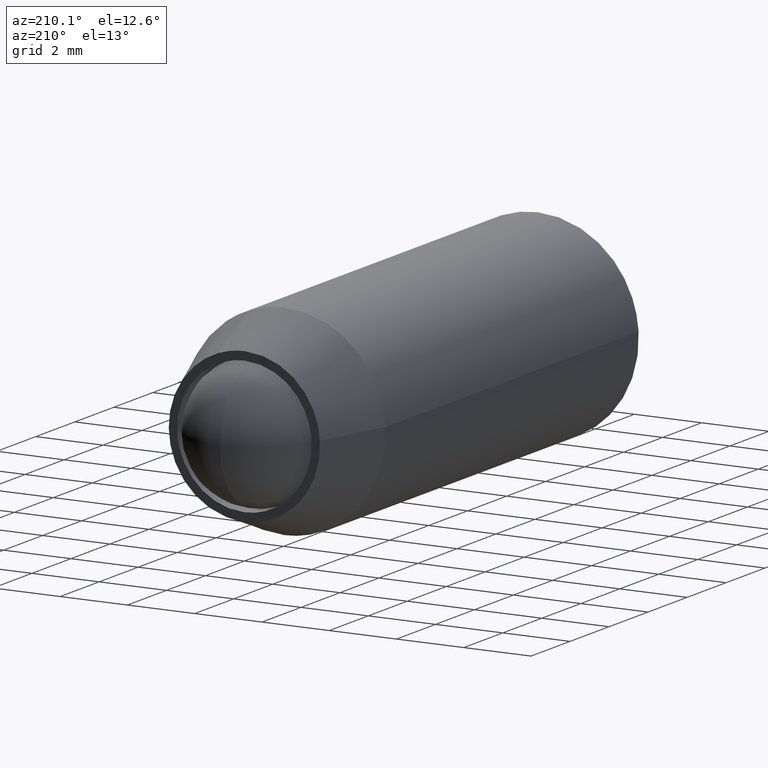
[diagram: clean part render]
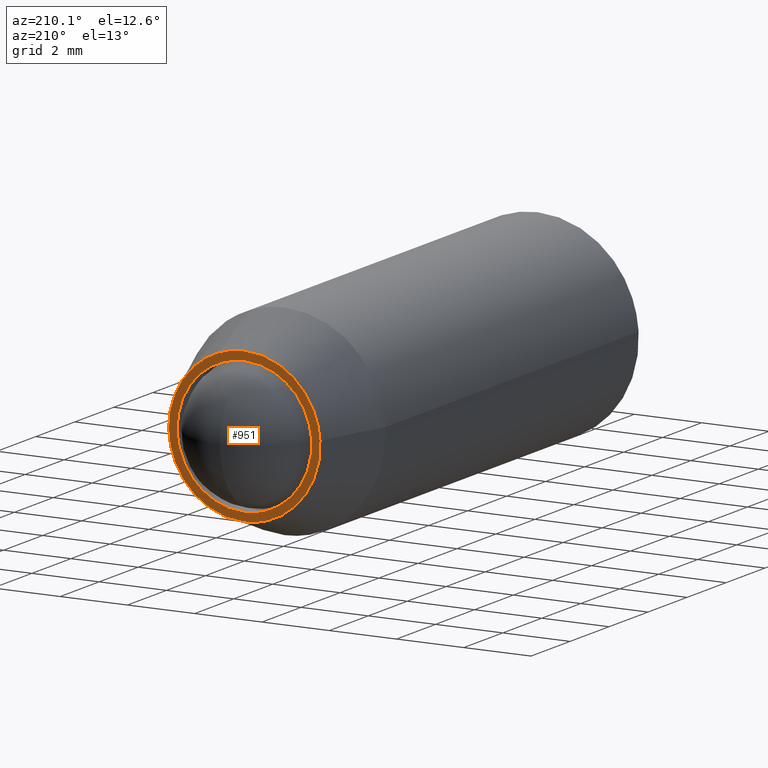
[diagram: same view with one face highlighted and labeled with its STEP entity id]
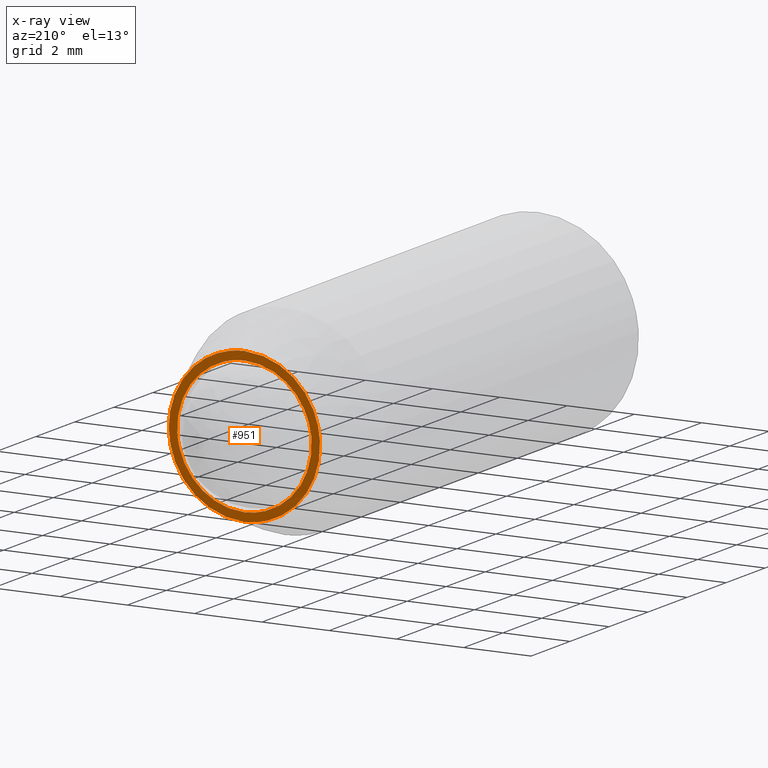
[diagram: x-ray of the same camera — body ghosted, the highlighted face saturated]
A machine part, auxiliary view. The second image highlights one B-rep face of the part: STEP entity #951.
The next image is the same camera in x-ray: the body ghosted, the highlighted face saturated — about 0% of this face is hidden behind the body in this view.
In plain terms, the highlighted face is a freeform B-spline surface patch.
Its self-contained STEP definition (entity closure, byte-faithful):
#100=CARTESIAN_POINT('',(1.996269743924191,-9.020562E-017,-0.122094674277944));
#101=VERTEX_POINT('',#100);
#107=CARTESIAN_POINT('',(0.0,0.0,-2.0));
#108=VERTEX_POINT('',#107);
#109=CARTESIAN_POINT('',(0.0,0.0,-2.0));
#110=CARTESIAN_POINT('',(1.881414404477311,0.0,-2.000000000000000));
#111=CARTESIAN_POINT('',(1.996269743924192,-9.020562E-017,-0.122094674277945));
#119=(BOUNDED_CURVE()B_SPLINE_CURVE(2,(#109,#110,#111),.UNSPECIFIED.,.F.,.U.)B_SPLINE_CURVE_WITH_KNOTS((3,3),(0.500000000000000,0.739333170099246),.UNSPECIFIED.)CURVE()GEOMETRIC_REPRESENTATION_ITEM()RATIONAL_B_SPLINE_CURVE((1.0,0.719603749763217,0.976072487151320))REPRESENTATION_ITEM(''));
#120=EDGE_CURVE('',#108,#101,#119,.T.);
#122=CARTESIAN_POINT('',(-1.986019487645854,-8.518285E-017,0.236064810332502));
#123=VERTEX_POINT('',#122);
#124=CARTESIAN_POINT('',(-1.986019487645855,-8.518285E-017,0.236064810332502));
#125=CARTESIAN_POINT('',(-2.0,0.0,0.118446390472678));
#126=CARTESIAN_POINT('',(-2.0,0.0,0.0));
#127=CARTESIAN_POINT('',(-2.000000000000000,0.0,-2.000000000000000));
#128=CARTESIAN_POINT('',(0.0,0.0,-2.0));
#136=(BOUNDED_CURVE()B_SPLINE_CURVE(2,(#124,#125,#126,#127,#128),.UNSPECIFIED.,.F.,.U.)B_SPLINE_CURVE_WITH_KNOTS((3,2,3),(0.229562784882116,0.250000000000000,0.500000000000000),.UNSPECIFIED.)CURVE()GEOMETRIC_REPRESENTATION_ITEM()RATIONAL_B_SPLINE_CURVE((0.956027364479822,0.976056313122160,1.0,0.707106781186548,1.0))REPRESENTATION_ITEM(''));
#137=EDGE_CURVE('',#123,#108,#136,.T.);
#185=CARTESIAN_POINT('',(0.0,0.0,2.0));
#186=VERTEX_POINT('',#185);
#187=CARTESIAN_POINT('',(0.0,0.0,2.0));
#188=CARTESIAN_POINT('',(-1.776352347634816,0.0,2.000000000000000));
#189=CARTESIAN_POINT('',(-1.986019487645855,-8.518285E-017,0.236064810332502));
#197=(BOUNDED_CURVE()B_SPLINE_CURVE(2,(#187,#188,#189),.UNSPECIFIED.,.F.,.U.)B_SPLINE_CURVE_WITH_KNOTS((3,3),(0.0,0.229562784882116),.UNSPECIFIED.)CURVE()GEOMETRIC_REPRESENTATION_ITEM()RATIONAL_B_SPLINE_CURVE((1.0,0.731050468064387,0.956027364479822))REPRESENTATION_ITEM(''));
#198=EDGE_CURVE('',#186,#123,#197,.T.);
#200=CARTESIAN_POINT('',(1.996269743924192,-9.020562E-017,-0.122094674277945));
#201=CARTESIAN_POINT('',(2.0,0.0,-0.061104320830003));
#202=CARTESIAN_POINT('',(2.0,0.0,0.0));
#203=CARTESIAN_POINT('',(2.000000000000000,0.0,2.000000000000000));
#204=CARTESIAN_POINT('',(0.0,0.0,2.0));
#212=(BOUNDED_CURVE()B_SPLINE_CURVE(2,(#200,#201,#202,#203,#204),.UNSPECIFIED.,.F.,.U.)B_SPLINE_CURVE_WITH_KNOTS((3,2,3),(0.739333170099246,0.750000000000000,1.0),.UNSPECIFIED.)CURVE()GEOMETRIC_REPRESENTATION_ITEM()RATIONAL_B_SPLINE_CURVE((0.976072487151320,0.987503031423331,1.0,0.707106781186548,1.0))REPRESENTATION_ITEM(''));
#213=EDGE_CURVE('',#101,#186,#212,.T.);
#485=CARTESIAN_POINT('',(0.791140442385241,-8.117313E-013,2.106323052246216));
#486=VERTEX_POINT('',#485);
#492=CARTESIAN_POINT('',(0.0,0.0,2.249999999999999));
#493=VERTEX_POINT('',#492);
#494=CARTESIAN_POINT('',(0.791140442385241,-8.117313E-013,2.106323052246217));
#495=CARTESIAN_POINT('',(0.408616618654734,0.0,2.250000000000000));
#496=CARTESIAN_POINT('',(0.0,0.0,2.249999999999999));
#504=(BOUNDED_CURVE()B_SPLINE_CURVE(2,(#494,#495,#496),.UNSPECIFIED.,.F.,.U.)B_SPLINE_CURVE_WITH_KNOTS((3,3),(0.440284170898295,0.500000000000000),.UNSPECIFIED.)CURVE()GEOMETRIC_REPRESENTATION_ITEM()RATIONAL_B_SPLINE_CURVE((0.893499554635014,0.930038554401150,1.0))REPRESENTATION_ITEM(''));
#505=EDGE_CURVE('',#486,#493,#504,.T.);
#507=CARTESIAN_POINT('',(-2.245803296449280,-2.592159E-012,0.137359213967615));
#508=VERTEX_POINT('',#507);
#509=CARTESIAN_POINT('',(0.0,0.0,2.249999999999999));
#510=CARTESIAN_POINT('',(-2.116588650511138,0.0,2.250000000000000));
#511=CARTESIAN_POINT('',(-2.245803296449280,-2.592159E-012,0.137359213967615));
#519=(BOUNDED_CURVE()B_SPLINE_CURVE(2,(#509,#510,#511),.UNSPECIFIED.,.F.,.U.)B_SPLINE_CURVE_WITH_KNOTS((3,3),(0.500000000000000,0.739332962239798),.UNSPECIFIED.)CURVE()GEOMETRIC_REPRESENTATION_ITEM()RATIONAL_B_SPLINE_CURVE((1.0,0.719603993285709,0.976072041668550))REPRESENTATION_ITEM(''));
#520=EDGE_CURVE('',#493,#508,#519,.T.);
#615=CARTESIAN_POINT('',(0.0,0.0,-2.250000000000001));
#616=VERTEX_POINT('',#615);
#617=CARTESIAN_POINT('',(-2.245803296449280,-2.592159E-012,0.137359213967615));
#618=CARTESIAN_POINT('',(-2.250000000000000,0.0,0.068743717435994));
#619=CARTESIAN_POINT('',(-2.250000000000000,0.0,-6.765950E-016));
#620=CARTESIAN_POINT('',(-2.250000000000000,0.0,-2.250000000000000));
#621=CARTESIAN_POINT('',(0.0,0.0,-2.250000000000001));
#629=(BOUNDED_CURVE()B_SPLINE_CURVE(2,(#617,#618,#619,#620,#621),.UNSPECIFIED.,.F.,.U.)B_SPLINE_CURVE_WITH_KNOTS((3,2,3),(0.739332962239797,0.750000000000000,1.0),.UNSPECIFIED.)CURVE()GEOMETRIC_REPRESENTATION_ITEM()RATIONAL_B_SPLINE_CURVE((0.976072041668548,0.987502787900838,1.0,0.707106781186547,1.0))REPRESENTATION_ITEM(''));
#630=EDGE_CURVE('',#508,#616,#629,.T.);
#632=CARTESIAN_POINT('',(0.0,0.0,-2.250000000000001));
#633=CARTESIAN_POINT('',(2.250000000000000,0.0,-2.250000000000000));
#634=CARTESIAN_POINT('',(2.250000000000000,0.0,-6.765950E-016));
#635=CARTESIAN_POINT('',(2.250000000000000,0.0,1.558371590305967));
#636=CARTESIAN_POINT('',(0.791140442385241,-8.117313E-013,2.106323052246216));
#644=(BOUNDED_CURVE()B_SPLINE_CURVE(2,(#632,#633,#634,#635,#636),.UNSPECIFIED.,.F.,.U.)B_SPLINE_CURVE_WITH_KNOTS((3,2,3),(0.0,0.250000000000000,0.440284170898295),.UNSPECIFIED.)CURVE()GEOMETRIC_REPRESENTATION_ITEM()RATIONAL_B_SPLINE_CURVE((1.0,0.707106781186547,1.0,0.777068226785397,0.893499554635014))REPRESENTATION_ITEM(''));
#645=EDGE_CURVE('',#616,#486,#644,.T.);
#934=CARTESIAN_POINT('',(-2.474720258543405,0.0,-2.474774991278128));
#935=CARTESIAN_POINT('',(-2.474720258543405,0.0,2.474775111977531));
#936=CARTESIAN_POINT('',(2.474732046852025,0.0,-2.474774991278128));
#937=CARTESIAN_POINT('',(2.474732046852025,0.0,2.474775111977531));
#938=B_SPLINE_SURFACE_WITH_KNOTS('',1,1,((#934,#936),(#935,#937)),.UNSPECIFIED.,.F.,.F.,.U.,(2,2),(2,2),(0.0,4.949550103255659),(0.0,4.949452305395431),.UNSPECIFIED.);
#939=ORIENTED_EDGE('',*,*,#630,.F.);
#940=ORIENTED_EDGE('',*,*,#520,.F.);
#941=ORIENTED_EDGE('',*,*,#505,.F.);
#942=ORIENTED_EDGE('',*,*,#645,.F.);
#943=EDGE_LOOP('',(#939,#940,#941,#942));
#944=FACE_OUTER_BOUND('',#943,.T.);
#945=ORIENTED_EDGE('',*,*,#120,.T.);
#946=ORIENTED_EDGE('',*,*,#213,.T.);
#947=ORIENTED_EDGE('',*,*,#198,.T.);
#948=ORIENTED_EDGE('',*,*,#137,.T.);
#949=EDGE_LOOP('',(#945,#946,#947,#948));
#950=FACE_BOUND('',#949,.T.);
#951=ADVANCED_FACE('',(#944,#950),#938,.T.);